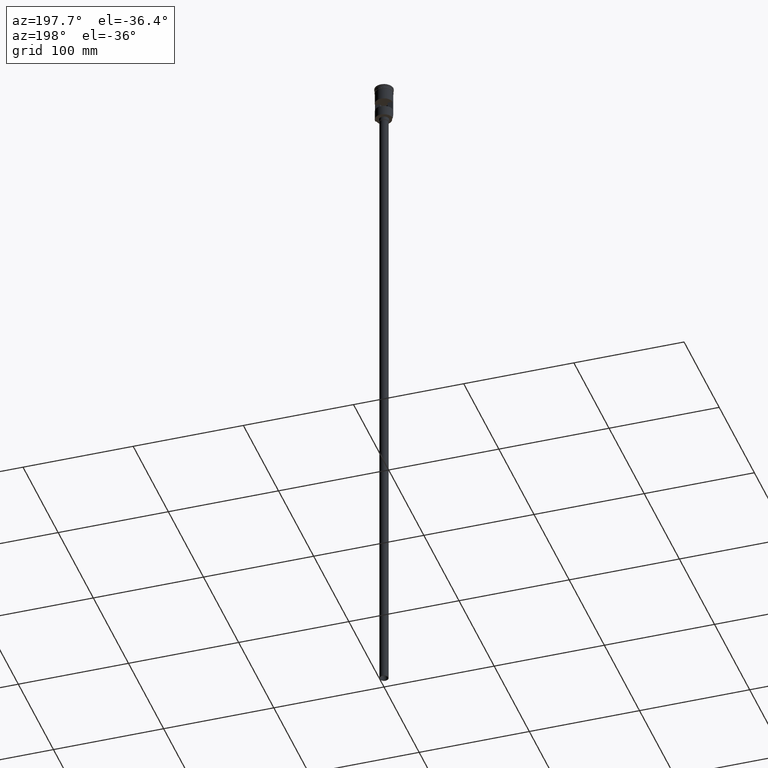
[diagram: clean part render]
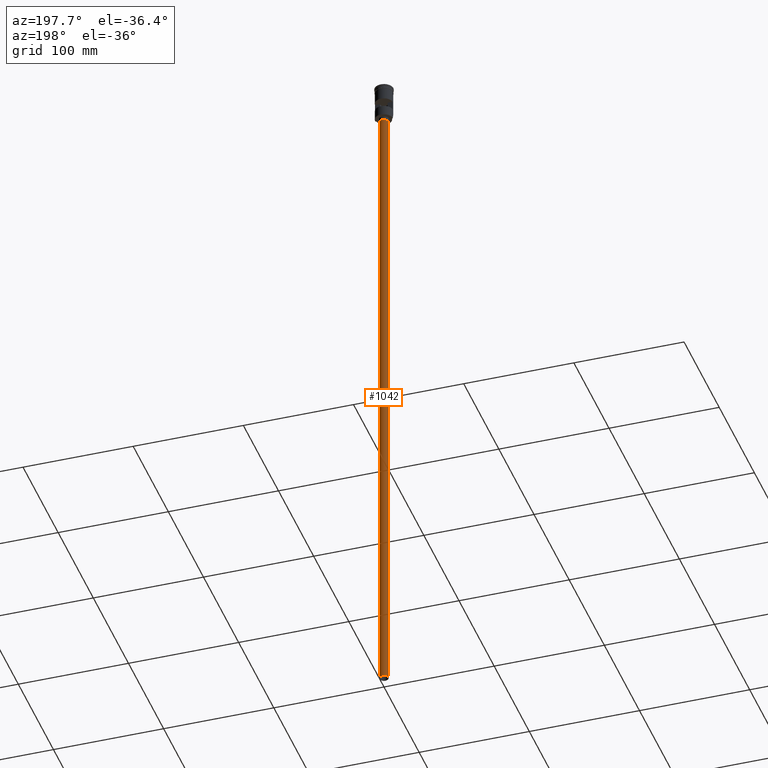
[diagram: same view with one face highlighted and labeled with its STEP entity id]
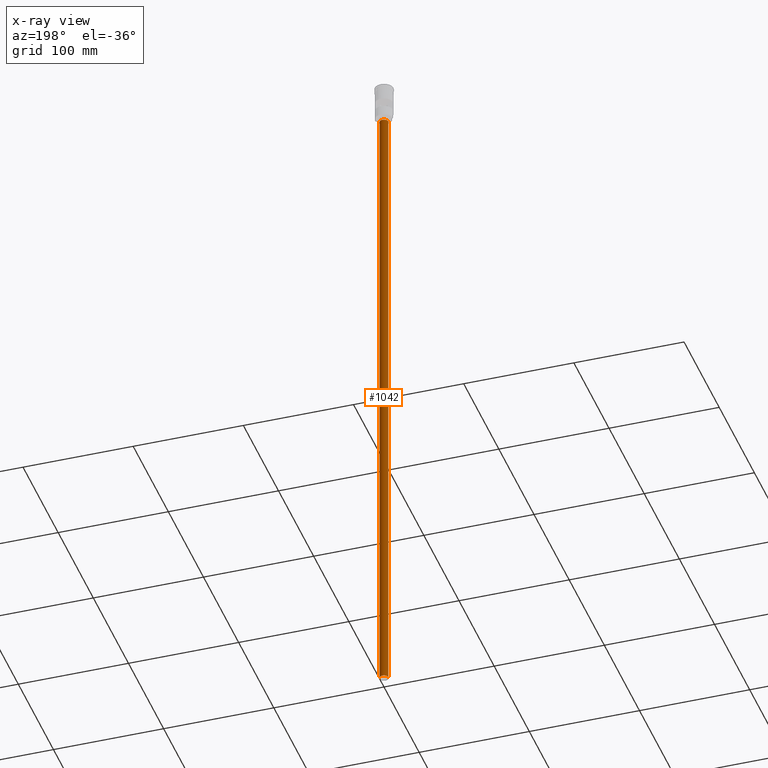
[diagram: x-ray of the same camera — body ghosted, the highlighted face saturated]
A machine part, auxiliary view. The second image highlights one B-rep face of the part: STEP entity #1042.
The next image is the same camera in x-ray: the body ghosted, the highlighted face saturated — about 0% of this face is hidden behind the body in this view.
In plain terms, the highlighted cylindrical surface (edge-blend (fillet) strip) has radius 4 mm, axis along (-0, -0, 1).
Its self-contained STEP definition (entity closure, byte-faithful):
#3 = CYLINDRICAL_SURFACE ( 'NONE', #1444, 4.000000000000000000 ) ;
#86 = CARTESIAN_POINT ( 'NONE',  ( -4.000000000000000000, 4.898587196589412829E-16, -632.0000000000000000 ) ) ;
#90 = CARTESIAN_POINT ( 'NONE',  ( 4.000000000000000000, 0.000000000000000000, -632.0000000000000000 ) ) ;
#93 = DIRECTION ( 'NONE',  ( -0.000000000000000000, -0.000000000000000000, 1.000000000000000000 ) ) ;
#186 = DIRECTION ( 'NONE',  ( 0.000000000000000000, 0.000000000000000000, -1.000000000000000000 ) ) ;
#208 = CIRCLE ( 'NONE', #1576, 4.000000000000000000 ) ;
#304 = CIRCLE ( 'NONE', #1079, 4.000000000000000000 ) ;
#369 = CARTESIAN_POINT ( 'NONE',  ( 0.000000000000000000, 0.000000000000000000, -632.0000000000000000 ) ) ;
#432 = VECTOR ( 'NONE', #93, 1000.000000000000000 ) ;
#450 = ORIENTED_EDGE ( 'NONE', *, *, #1589, .T. ) ;
#458 = EDGE_CURVE ( 'NONE', #1348, #1203, #831, .T. ) ;
#595 = ORIENTED_EDGE ( 'NONE', *, *, #636, .F. ) ;
#602 = CARTESIAN_POINT ( 'NONE',  ( 4.000000000000000000, 0.000000000000000000, -632.0000000000000000 ) ) ;
#623 = FACE_OUTER_BOUND ( 'NONE', #1179, .T. ) ;
#636 = EDGE_CURVE ( 'NONE', #1348, #1039, #304, .T. ) ;
#674 = DIRECTION ( 'NONE',  ( 0.000000000000000000, 0.000000000000000000, -1.000000000000000000 ) ) ;
#767 = DIRECTION ( 'NONE',  ( -1.000000000000000000, 0.000000000000000000, 0.000000000000000000 ) ) ;
#784 = CARTESIAN_POINT ( 'NONE',  ( 4.000000000000000000, 0.000000000000000000, -35.00000000000000000 ) ) ;
#821 = ORIENTED_EDGE ( 'NONE', *, *, #458, .T. ) ;
#831 = LINE ( 'NONE', #86, #432 ) ;
#834 = EDGE_CURVE ( 'NONE', #1039, #1248, #1426, .T. ) ;
#862 = DIRECTION ( 'NONE',  ( -0.000000000000000000, -0.000000000000000000, 1.000000000000000000 ) ) ;
#870 = VECTOR ( 'NONE', #924, 1000.000000000000000 ) ;
#924 = DIRECTION ( 'NONE',  ( -0.000000000000000000, -0.000000000000000000, 1.000000000000000000 ) ) ;
#962 = DIRECTION ( 'NONE',  ( 1.000000000000000000, 0.000000000000000000, 0.000000000000000000 ) ) ;
#1011 = CARTESIAN_POINT ( 'NONE',  ( -4.000000000000000000, 4.898587196589412829E-16, -35.00000000000000000 ) ) ;
#1039 = VERTEX_POINT ( 'NONE', #602 ) ;
#1042 = ADVANCED_FACE ( 'NONE', ( #623 ), #3, .T. ) ;
#1079 = AXIS2_PLACEMENT_3D ( 'NONE', #1258, #186, #1274 ) ;
#1179 = EDGE_LOOP ( 'NONE', ( #595, #821, #450, #1340 ) ) ;
#1203 = VERTEX_POINT ( 'NONE', #1011 ) ;
#1248 = VERTEX_POINT ( 'NONE', #784 ) ;
#1258 = CARTESIAN_POINT ( 'NONE',  ( 0.000000000000000000, 0.000000000000000000, -632.0000000000000000 ) ) ;
#1270 = CARTESIAN_POINT ( 'NONE',  ( -4.000000000000000000, 4.898587196589412829E-16, -632.0000000000000000 ) ) ;
#1274 = DIRECTION ( 'NONE',  ( -1.000000000000000000, 0.000000000000000000, 0.000000000000000000 ) ) ;
#1340 = ORIENTED_EDGE ( 'NONE', *, *, #834, .F. ) ;
#1348 = VERTEX_POINT ( 'NONE', #1270 ) ;
#1393 = CARTESIAN_POINT ( 'NONE',  ( 0.000000000000000000, 0.000000000000000000, -35.00000000000000000 ) ) ;
#1426 = LINE ( 'NONE', #90, #870 ) ;
#1444 = AXIS2_PLACEMENT_3D ( 'NONE', #369, #862, #962 ) ;
#1576 = AXIS2_PLACEMENT_3D ( 'NONE', #1393, #674, #767 ) ;
#1589 = EDGE_CURVE ( 'NONE', #1203, #1248, #208, .T. ) ;